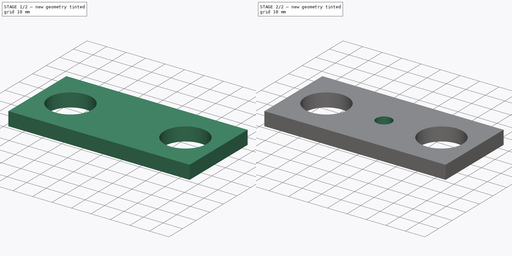
[diagram: build sequence overview — one tinted view per stage of 2, left to right]
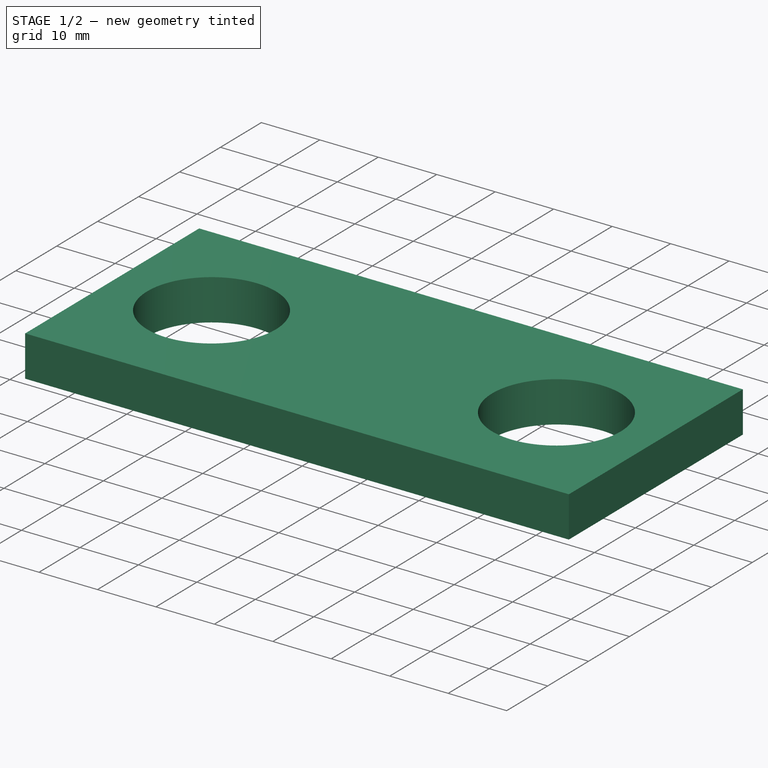
[diagram: stage 1 of 2 — iso view after this stage's code; geometry added in this stage tinted green]
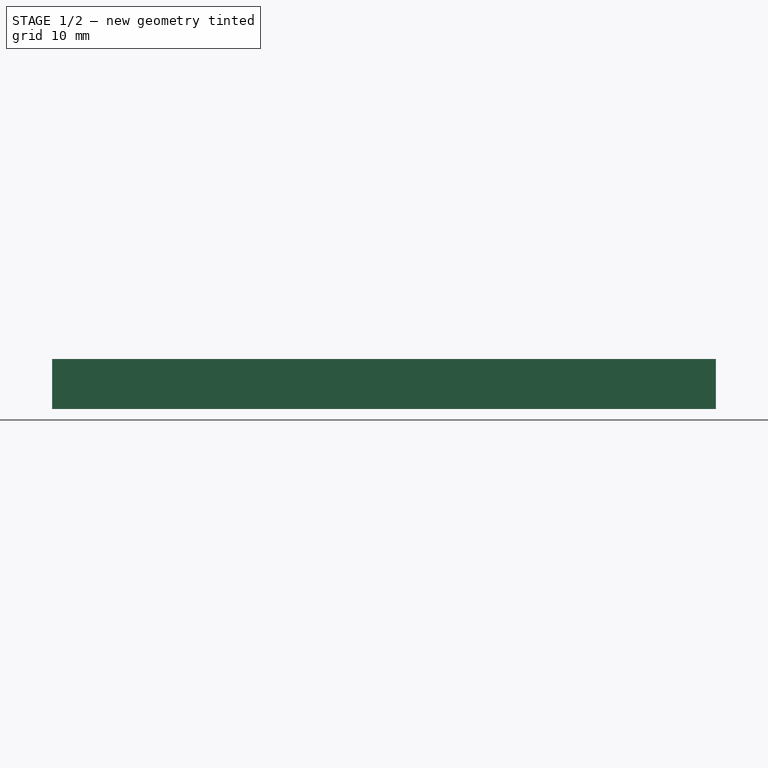
[diagram: stage 1 of 2 — front view after this stage's code; geometry added in this stage tinted green]
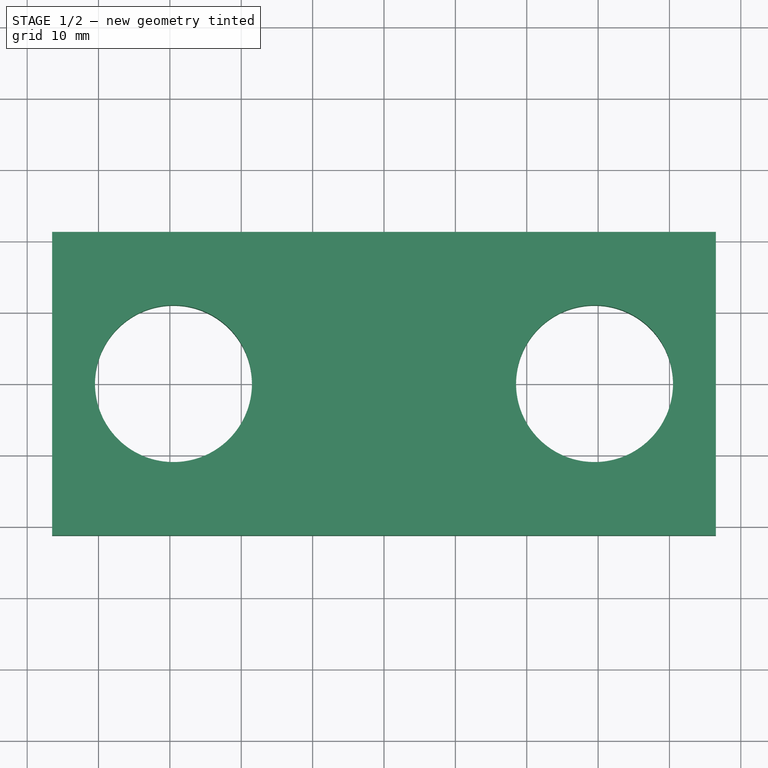
[diagram: stage 1 of 2 — top view after this stage's code; geometry added in this stage tinted green]
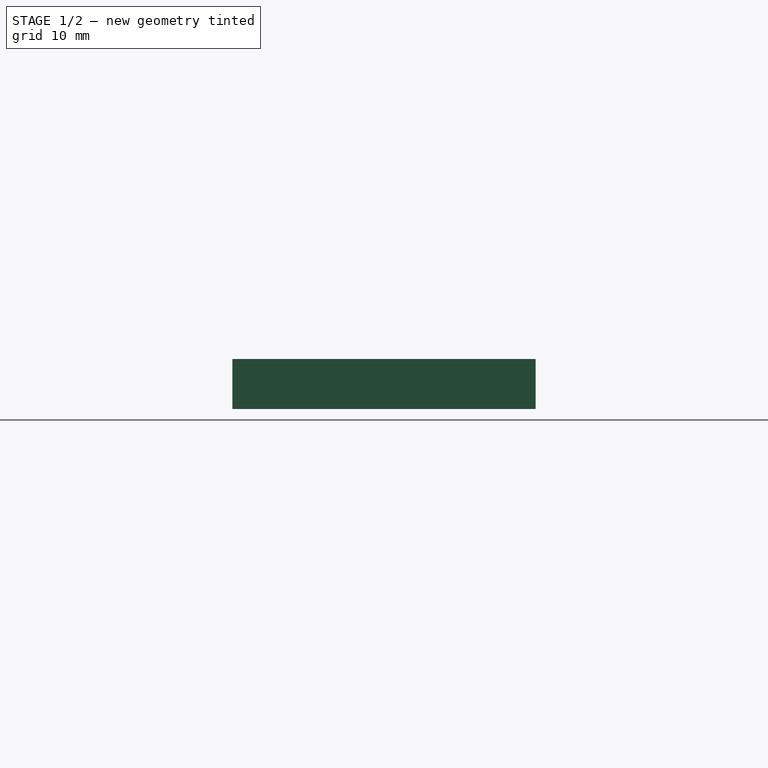
[diagram: stage 1 of 2 — right view after this stage's code; geometry added in this stage tinted green]
FCSTD DOCUMENT  (FreeCAD 0.16R6712 (Git))
Label: z-axis-top
License: All rights reserved
LicenseURL: http://en.wikipedia.org/wiki/All_rights_reserved
objects: Sketcher::SketchObject×2, PartDesign::Pad×1, PartDesign::Pocket×1
note: 6 computed .brp shape members not serialized (recipe doc carries the construction recipe); baked Part::Feature solids carry a one-line shape summary decoded from their .brp

FEATURE [Sketcher::SketchObject] Sketch
  sketch-geometry (6):
    g0: LineSegment StartX=-46.5 StartY=21.25 StartZ=0 EndX=46.5 EndY=21.25 EndZ=0
    g1: LineSegment StartX=46.5 StartY=21.25 StartZ=0 EndX=46.5 EndY=-21.25 EndZ=0
    g2: LineSegment StartX=46.5 StartY=-21.25 StartZ=0 EndX=-46.5 EndY=-21.25 EndZ=0
    g3: LineSegment StartX=-46.5 StartY=-21.25 StartZ=0 EndX=-46.5 EndY=21.25 EndZ=0
    g4: Circle CenterX=29.5 CenterY=0 CenterZ=0 NormalX=0 NormalY=0 NormalZ=1 Radius=11
    g5: Circle CenterX=-29.5 CenterY=0 CenterZ=0 NormalX=0 NormalY=0 NormalZ=1 Radius=11
  constraints (18):
    c: Coincident(g0,g1)
    c: Coincident(g1,g2)
    c: Coincident(g2,g3)
    c: Coincident(g3,g0)
    c: Horizontal(g0)
    c: Horizontal(g2)
    c: Vertical(g1)
    c: Vertical(g3)
    c: PointOnObject(g4,g-1)
    c: PointOnObject(g5,g-1)
    c: Equal(g5,g4)
    c: DistanceX(g5,g4) = 59
    c: DistanceX(g0,g0) = 93
    c: Radius(g4) = 11
    c: DistanceY(g1,g1) = 42.5
    c: DistanceY(g-1,g0) = 21.25
    c: DistanceX(g0,g-1) = 46.5
    c: Symmetric(g5,g4,g-2)
FEATURE [PartDesign::Pad] Pad
  Length = 7
  Length2 = 100
  Sketch = -> Sketch
  Type = 0
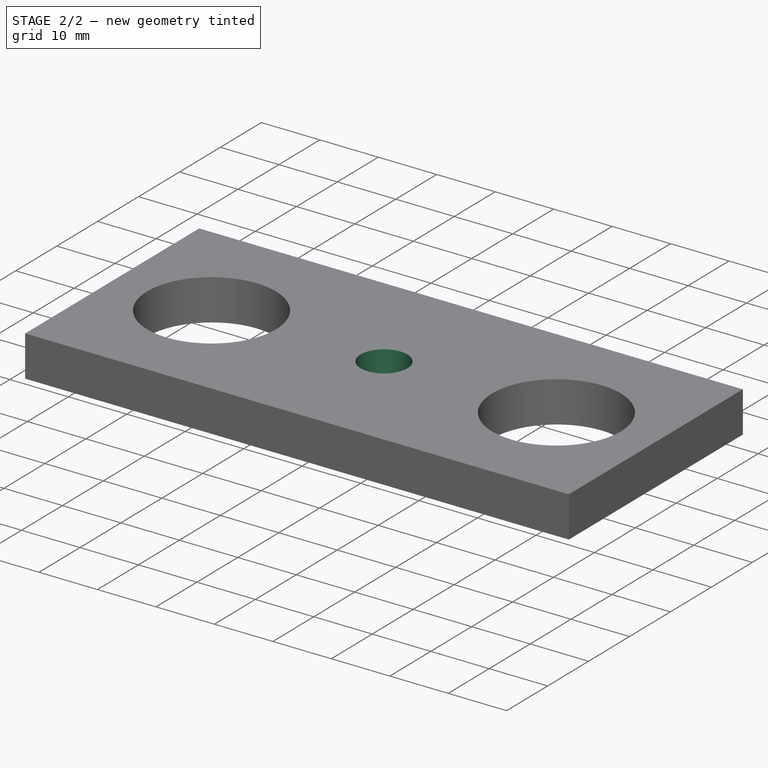
[diagram: stage 2 of 2 — iso view after this stage's code; geometry added in this stage tinted green]
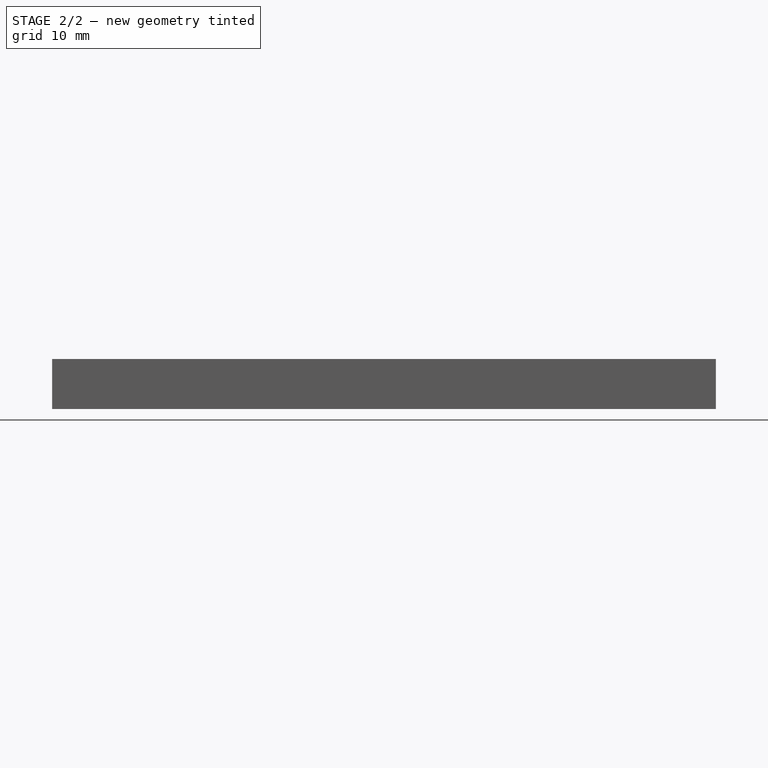
[diagram: stage 2 of 2 — front view after this stage's code; geometry added in this stage tinted green]
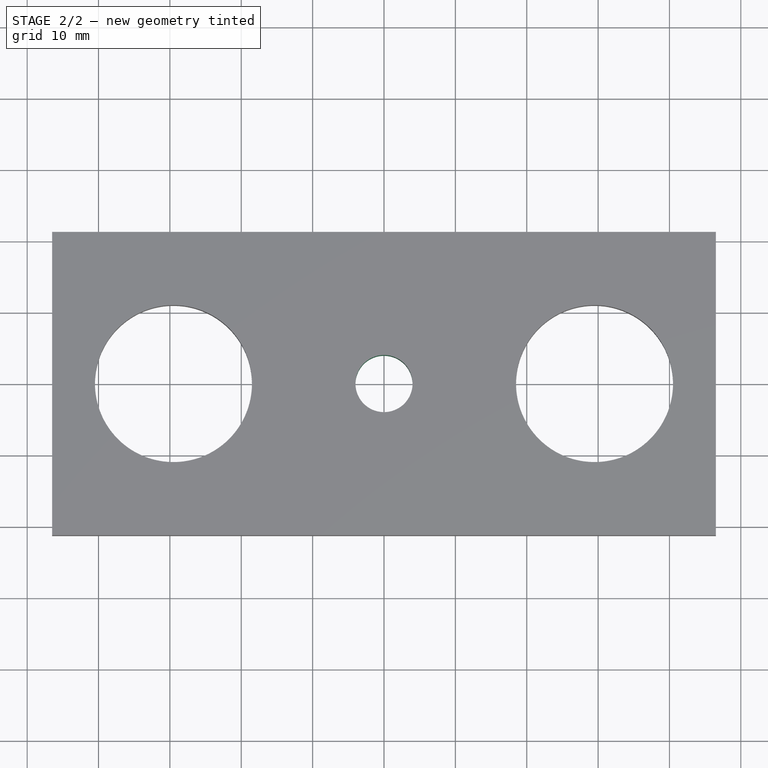
[diagram: stage 2 of 2 — top view after this stage's code; geometry added in this stage tinted green]
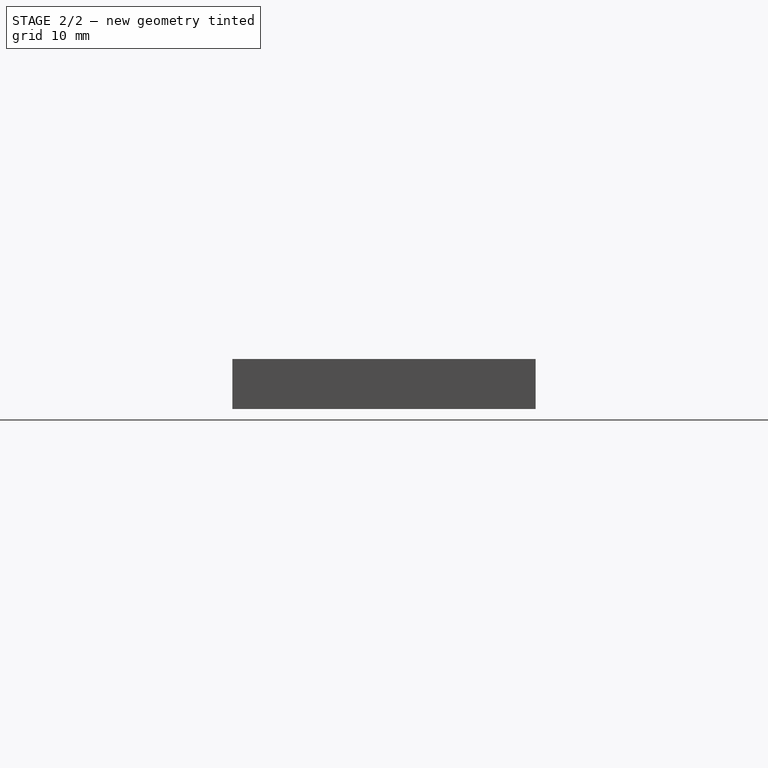
[diagram: stage 2 of 2 — right view after this stage's code; geometry added in this stage tinted green]
FEATURE [Sketcher::SketchObject] Sketch001
  Placement = pos=(0,0,7) rot=(0,0,1;0rad)
  Support = -> Pad [Face8]
  sketch-geometry (1):
    g0: Circle CenterX=0 CenterY=0 CenterZ=0 NormalX=0 NormalY=0 NormalZ=1 Radius=4
  constraints (2):
    c: Coincident(g0,g-1)
    c: Radius(g0) = 4
FEATURE [PartDesign::Pocket] Pocket
  Length = 3
  Sketch = -> Sketch001
  Type = 1
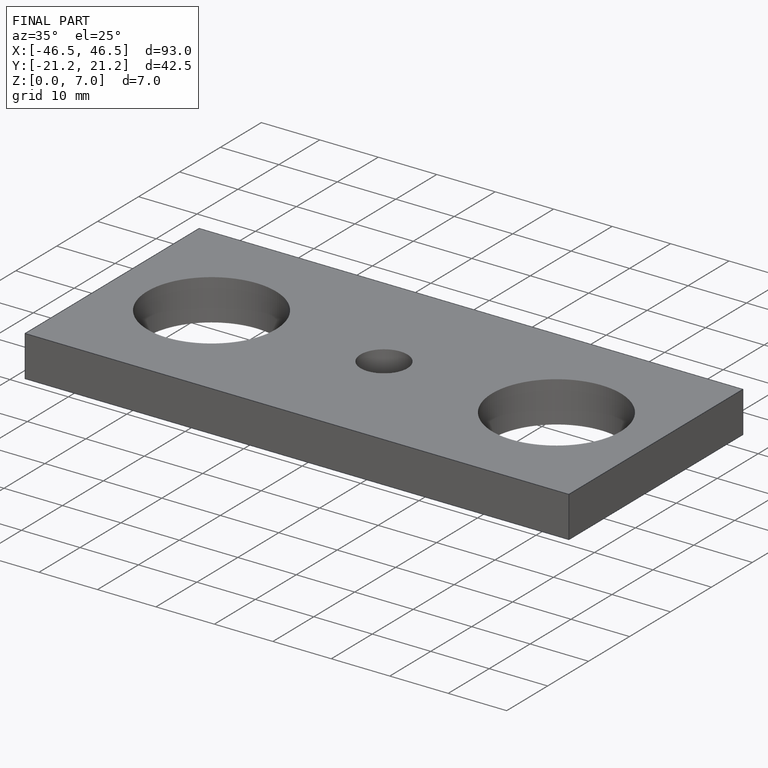
[diagram: finished part — iso view with bounding-box wireframe]
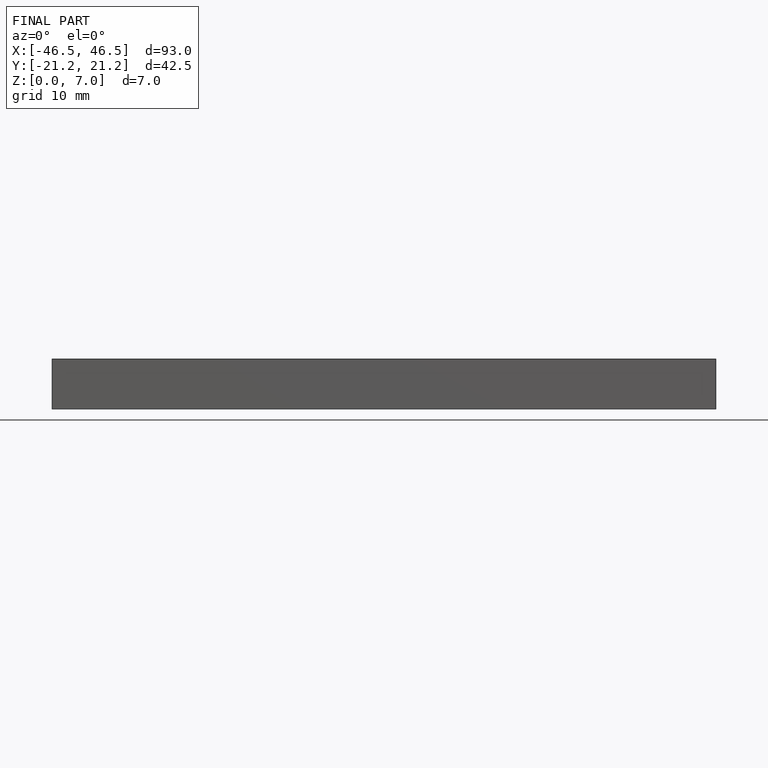
[diagram: finished part — front view with bounding-box wireframe]
